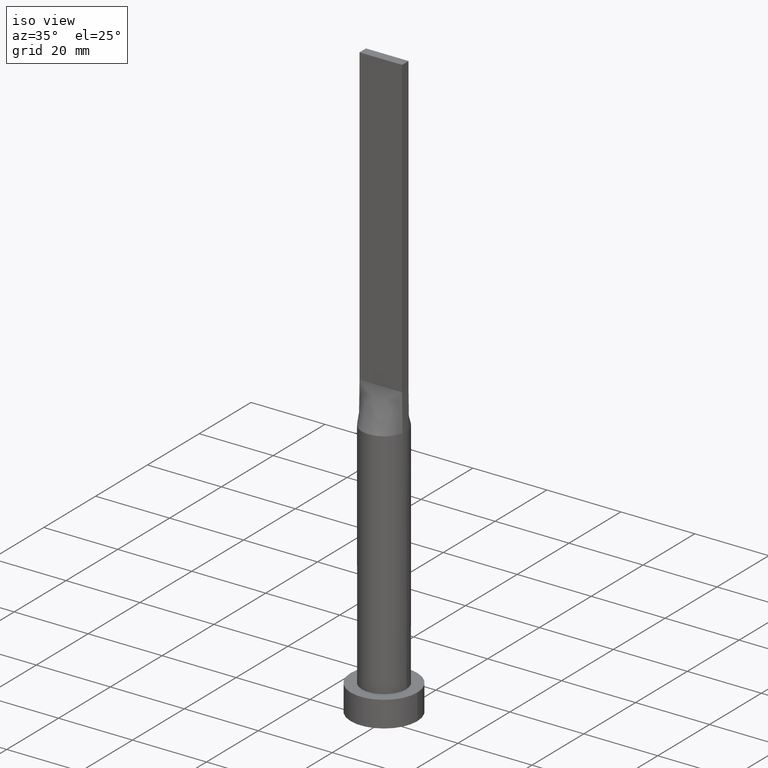
[diagram: clean part render]
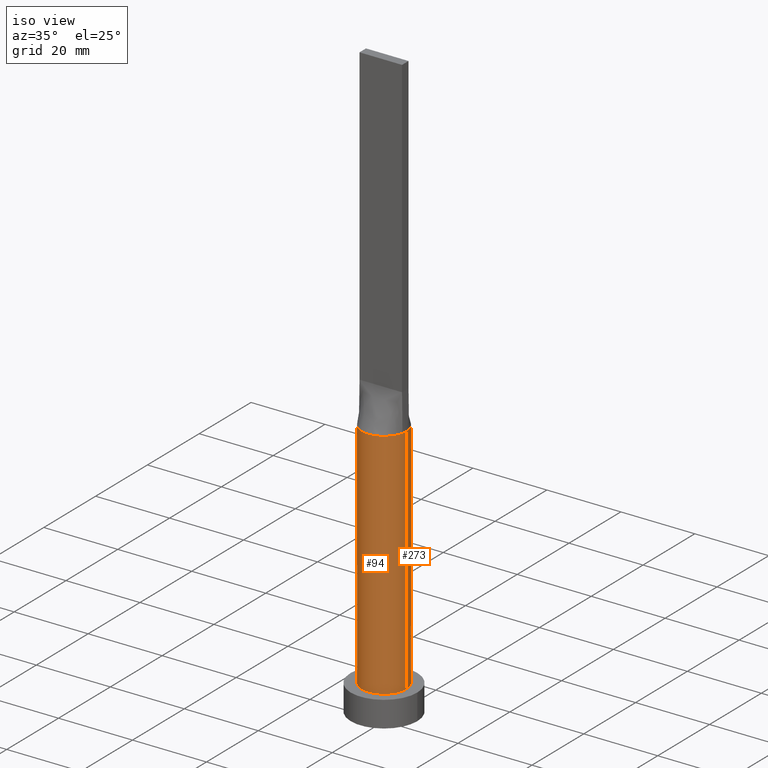
[diagram: same view with one multi-face feature highlighted, each face labeled with its STEP entity id]
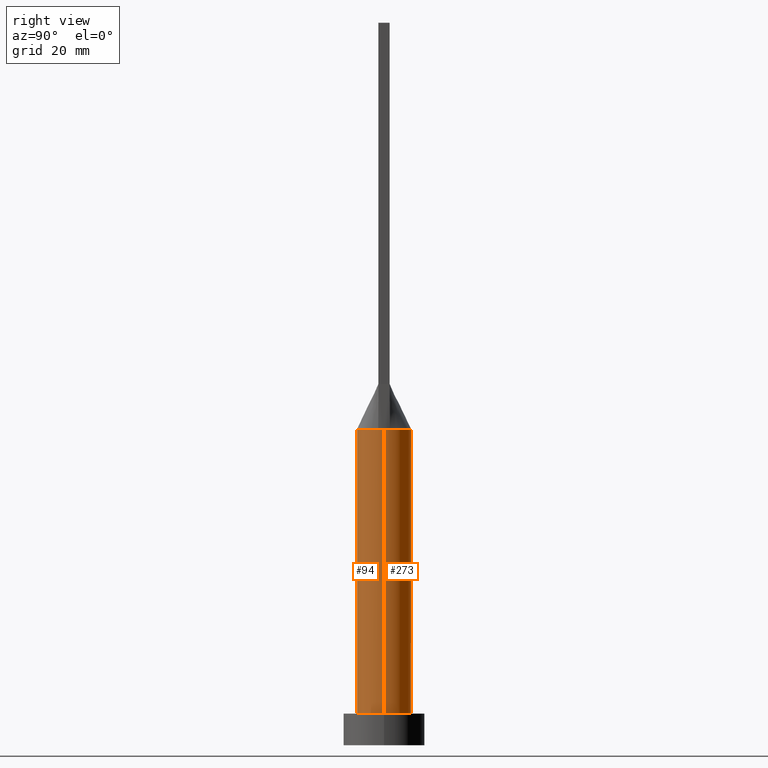
[diagram: same view with one multi-face feature highlighted, each face labeled with its STEP entity id]
A machine part, iso view. The highlighted faces form ONE feature: a constant-radius fillet chain: 2 tangent blend faces with common blend radius 6 mm. The faces share edges in the B-rep.
A second angle (right view) of the same feature is appended — it is thin or edge-on in the first view.
Their STEP definitions:
[1] entity #273 (Cylinder):
#4 = FACE_OUTER_BOUND ( 'NONE', #390, .T. ) ;
#25 = VERTEX_POINT ( 'NONE', #97 ) ;
#28 = DIRECTION ( 'NONE',  ( 1.000000000000000000, 0.000000000000000000, 0.000000000000000000 ) ) ;
#37 = CARTESIAN_POINT ( 'NONE',  ( 3.660567483996337579, 4.804269179125218336, 70.00000000000000000 ) ) ;
#38 = CIRCLE ( 'NONE', #86, 6.000000000000000888 ) ;
#83 = EDGE_CURVE ( 'NONE', #558, #447, #184, .T. ) ;
#84 = B_SPLINE_CURVE_WITH_KNOTS ( 'NONE', 3,
 ( #454, #469, #307, #395, #185, #37, #136, #511, #547, #85, #589, #176, #598, #224, #549, #351, #319, #266, #347, #409, #401, #130 ),
 .UNSPECIFIED., .F., .F.,
 ( 4, 2, 2, 2, 2, 2, 2, 2, 2, 2, 4 ),
 ( 0.000000000000000000, 0.1249999999999999722, 0.2499999999999999445, 0.3749999999999999445, 0.4374999999999999445, 0.4999999999999998890, 0.5624999999999998890, 0.6249999999999998890, 0.7499999999999997780, 0.8749999999999998890, 1.000000000000000000 ),
 .UNSPECIFIED. ) ;
#85 = CARTESIAN_POINT ( 'NONE',  ( 0.8058840496048939039, 5.959001506938069070, 70.00000000000001421 ) ) ;
#86 = AXIS2_PLACEMENT_3D ( 'NONE', #591, #343, #28 ) ;
#93 = ORIENTED_EDGE ( 'NONE', *, *, #231, .F. ) ;
#97 = CARTESIAN_POINT ( 'NONE',  ( 6.000000000000000888, 6.923844231069229210E-17, 70.00000000000000000 ) ) ;
#98 = CARTESIAN_POINT ( 'NONE',  ( 5.863058183536806744, 1.274577865986262326, 70.00000000000000000 ) ) ;
#130 = CARTESIAN_POINT ( 'NONE',  ( -5.863058287509749888, 1.274577880478287017, 70.00000000000000000 ) ) ;
#133 = CARTESIAN_POINT ( 'NONE',  ( -6.000000000000000888, -3.688698462745542764E-16, 70.00000000000000000 ) ) ;
#134 = VERTEX_POINT ( 'NONE', #98 ) ;
#136 = CARTESIAN_POINT ( 'NONE',  ( 3.037647739454305995, 5.231880992812856235, 70.00000000000001421 ) ) ;
#153 = EDGE_CURVE ( 'NONE', #134, #227, #84, .T. ) ;
#176 = CARTESIAN_POINT ( 'NONE',  ( -0.4029827085191223790, 5.999999999999998224, 70.00000000000000000 ) ) ;
#180 = ORIENTED_EDGE ( 'NONE', *, *, #314, .F. ) ;
#181 = CARTESIAN_POINT ( 'NONE',  ( -6.000000000000000888, 0.000000000000000000, 7.000000000000000000 ) ) ;
#182 = DIRECTION ( 'NONE',  ( -0.000000000000000000, -0.000000000000000000, -1.000000000000000000 ) ) ;
#183 = ORIENTED_EDGE ( 'NONE', *, *, #83, .T. ) ;
#184 = CIRCLE ( 'NONE', #531, 6.000000000000000888 ) ;
#185 = CARTESIAN_POINT ( 'NONE',  ( 4.659826596530313836, 3.842755878357678068, 70.00000000000001421 ) ) ;
#192 = LINE ( 'NONE', #564, #496 ) ;
#201 = VERTEX_POINT ( 'NONE', #133 ) ;
#218 = CARTESIAN_POINT ( 'NONE',  ( 6.000000000000000888, 7.347880794884120722E-16, 7.000000000000000000 ) ) ;
#224 = CARTESIAN_POINT ( 'NONE',  ( -1.587717880441007035, 5.799853445840308375, 69.99999999999998579 ) ) ;
#227 = VERTEX_POINT ( 'NONE', #311 ) ;
#228 = CYLINDRICAL_SURFACE ( 'NONE', #416, 6.000000000000000888 ) ;
#231 = EDGE_CURVE ( 'NONE', #201, #447, #460, .T. ) ;
#245 = DIRECTION ( 'NONE',  ( 1.000000000000000000, 0.000000000000000000, 0.000000000000000000 ) ) ;
#266 = CARTESIAN_POINT ( 'NONE',  ( -4.659826596530312948, 3.842755878357679844, 69.99999999999998579 ) ) ;
#270 = CARTESIAN_POINT ( 'NONE',  ( -6.000000000000000888, 0.000000000000000000, 70.00000000000000000 ) ) ;
#273 = ADVANCED_FACE ( 'NONE', ( #4 ), #228, .T. ) ;
#283 = DIRECTION ( 'NONE',  ( 1.000000000000000000, 0.000000000000000000, 0.000000000000000000 ) ) ;
#307 = CARTESIAN_POINT ( 'NONE',  ( 5.586898165904734093, 2.266054396544147309, 70.00000000000000000 ) ) ;
#311 = CARTESIAN_POINT ( 'NONE',  ( -5.863058287509749888, 1.274577880478287017, 70.00000000000000000 ) ) ;
#314 = EDGE_CURVE ( 'NONE', #227, #201, #397, .T. ) ;
#319 = CARTESIAN_POINT ( 'NONE',  ( -3.660567483996338023, 4.804269179125219225, 70.00000000000001421 ) ) ;
#326 = DIRECTION ( 'NONE',  ( -1.000000000000000000, 0.000000000000000000, 0.000000000000000000 ) ) ;
#328 = CARTESIAN_POINT ( 'NONE',  ( 0.000000000000000000, 0.000000000000000000, 70.00000000000000000 ) ) ;
#343 = DIRECTION ( 'NONE',  ( 0.000000000000000000, 0.000000000000000000, 1.000000000000000000 ) ) ;
#347 = CARTESIAN_POINT ( 'NONE',  ( -5.038190104264874236, 3.311355329404293446, 70.00000000000001421 ) ) ;
#350 = EDGE_CURVE ( 'NONE', #25, #558, #192, .T. ) ;
#351 = CARTESIAN_POINT ( 'NONE',  ( -3.037647739454304663, 5.231880992812857123, 70.00000000000002842 ) ) ;
#368 = DIRECTION ( 'NONE',  ( -0.000000000000000000, -0.000000000000000000, -1.000000000000000000 ) ) ;
#379 = CARTESIAN_POINT ( 'NONE',  ( 0.000000000000000000, 0.000000000000000000, 70.00000000000000000 ) ) ;
#390 = EDGE_LOOP ( 'NONE', ( #555, #536, #183, #93, #180, #521 ) ) ;
#395 = CARTESIAN_POINT ( 'NONE',  ( 5.038190104264874236, 3.311355329404293002, 70.00000000000004263 ) ) ;
#397 = CIRCLE ( 'NONE', #407, 6.000000000000000888 ) ;
#401 = CARTESIAN_POINT ( 'NONE',  ( -5.759267569818392829, 1.752014689090956256, 70.00000000000000000 ) ) ;
#407 = AXIS2_PLACEMENT_3D ( 'NONE', #379, #489, #283 ) ;
#409 = CARTESIAN_POINT ( 'NONE',  ( -5.586898165904732316, 2.266054396544148197, 70.00000000000001421 ) ) ;
#416 = AXIS2_PLACEMENT_3D ( 'NONE', #328, #368, #326 ) ;
#447 = VERTEX_POINT ( 'NONE', #181 ) ;
#454 = CARTESIAN_POINT ( 'NONE',  ( 5.863058183536806744, 1.274577865986262326, 70.00000000000000000 ) ) ;
#460 = LINE ( 'NONE', #270, #510 ) ;
#469 = CARTESIAN_POINT ( 'NONE',  ( 5.759267569818392829, 1.752014689090955590, 70.00000000000001421 ) ) ;
#487 = CARTESIAN_POINT ( 'NONE',  ( 0.000000000000000000, 0.000000000000000000, 7.000000000000000000 ) ) ;
#489 = DIRECTION ( 'NONE',  ( 0.000000000000000000, 0.000000000000000000, 1.000000000000000000 ) ) ;
#496 = VECTOR ( 'NONE', #573, 1000.000000000000000 ) ;
#510 = VECTOR ( 'NONE', #182, 1000.000000000000000 ) ;
#511 = CARTESIAN_POINT ( 'NONE',  ( 1.966519853258819062, 5.681792876789066860, 70.00000000000000000 ) ) ;
#521 = ORIENTED_EDGE ( 'NONE', *, *, #153, .F. ) ;
#531 = AXIS2_PLACEMENT_3D ( 'NONE', #487, #541, #245 ) ;
#536 = ORIENTED_EDGE ( 'NONE', *, *, #350, .T. ) ;
#541 = DIRECTION ( 'NONE',  ( 0.000000000000000000, 0.000000000000000000, 1.000000000000000000 ) ) ;
#547 = CARTESIAN_POINT ( 'NONE',  ( 1.587717880441007479, 5.799853445840305710, 69.99999999999998579 ) ) ;
#549 = CARTESIAN_POINT ( 'NONE',  ( -1.966519853258818173, 5.681792876789067748, 70.00000000000002842 ) ) ;
#555 = ORIENTED_EDGE ( 'NONE', *, *, #574, .F. ) ;
#558 = VERTEX_POINT ( 'NONE', #218 ) ;
#564 = CARTESIAN_POINT ( 'NONE',  ( 6.000000000000000888, 7.347880794884120722E-16, 70.00000000000000000 ) ) ;
#573 = DIRECTION ( 'NONE',  ( -0.000000000000000000, -0.000000000000000000, -1.000000000000000000 ) ) ;
#574 = EDGE_CURVE ( 'NONE', #25, #134, #38, .T. ) ;
#589 = CARTESIAN_POINT ( 'NONE',  ( 0.4029827085191226566, 5.999999999999999112, 70.00000000000000000 ) ) ;
#591 = CARTESIAN_POINT ( 'NONE',  ( 0.000000000000000000, 0.000000000000000000, 70.00000000000000000 ) ) ;
#598 = CARTESIAN_POINT ( 'NONE',  ( -0.8058840496048931268, 5.959001506938069070, 70.00000000000000000 ) ) ;
[2] entity #94 (Cylinder):
#18 = ORIENTED_EDGE ( 'NONE', *, *, #231, .T. ) ;
#25 = VERTEX_POINT ( 'NONE', #97 ) ;
#69 = FACE_OUTER_BOUND ( 'NONE', #473, .T. ) ;
#81 = AXIS2_PLACEMENT_3D ( 'NONE', #172, #126, #342 ) ;
#94 = ADVANCED_FACE ( 'NONE', ( #69 ), #330, .T. ) ;
#95 = AXIS2_PLACEMENT_3D ( 'NONE', #149, #485, #109 ) ;
#97 = CARTESIAN_POINT ( 'NONE',  ( 6.000000000000000888, 6.923844231069229210E-17, 70.00000000000000000 ) ) ;
#109 = DIRECTION ( 'NONE',  ( 1.000000000000000000, 0.000000000000000000, 0.000000000000000000 ) ) ;
#123 = ORIENTED_EDGE ( 'NONE', *, *, #288, .F. ) ;
#126 = DIRECTION ( 'NONE',  ( -0.000000000000000000, -0.000000000000000000, -1.000000000000000000 ) ) ;
#128 = DIRECTION ( 'NONE',  ( 1.000000000000000000, -9.769962616701377556E-15, 0.000000000000000000 ) ) ;
#132 = CARTESIAN_POINT ( 'NONE',  ( 5.863058287509796074, -1.274577880478293901, 70.00000000000000000 ) ) ;
#133 = CARTESIAN_POINT ( 'NONE',  ( -6.000000000000000888, -3.688698462745542764E-16, 70.00000000000000000 ) ) ;
#149 = CARTESIAN_POINT ( 'NONE',  ( 0.000000000000000000, 0.000000000000000000, 70.00000000000000000 ) ) ;
#167 = CIRCLE ( 'NONE', #324, 6.000000000000000888 ) ;
#172 = CARTESIAN_POINT ( 'NONE',  ( 0.000000000000000000, 0.000000000000000000, 70.00000000000000000 ) ) ;
#178 = DIRECTION ( 'NONE',  ( 1.000000000000000000, 0.000000000000000000, 0.000000000000000000 ) ) ;
#181 = CARTESIAN_POINT ( 'NONE',  ( -6.000000000000000888, 0.000000000000000000, 7.000000000000000000 ) ) ;
#182 = DIRECTION ( 'NONE',  ( -0.000000000000000000, -0.000000000000000000, -1.000000000000000000 ) ) ;
#192 = LINE ( 'NONE', #564, #496 ) ;
#196 = DIRECTION ( 'NONE',  ( 0.000000000000000000, 0.000000000000000000, 1.000000000000000000 ) ) ;
#201 = VERTEX_POINT ( 'NONE', #133 ) ;
#214 = CARTESIAN_POINT ( 'NONE',  ( 0.000000000000000000, 0.000000000000000000, 7.000000000000000000 ) ) ;
#218 = CARTESIAN_POINT ( 'NONE',  ( 6.000000000000000888, 7.347880794884120722E-16, 7.000000000000000000 ) ) ;
#230 = ORIENTED_EDGE ( 'NONE', *, *, #542, .F. ) ;
#231 = EDGE_CURVE ( 'NONE', #201, #447, #460, .T. ) ;
#254 = CARTESIAN_POINT ( 'NONE',  ( 0.000000000000000000, 0.000000000000000000, 70.00000000000000000 ) ) ;
#270 = CARTESIAN_POINT ( 'NONE',  ( -6.000000000000000888, 0.000000000000000000, 70.00000000000000000 ) ) ;
#288 = EDGE_CURVE ( 'NONE', #201, #393, #167, .T. ) ;
#324 = AXIS2_PLACEMENT_3D ( 'NONE', #371, #196, #578 ) ;
#330 = CYLINDRICAL_SURFACE ( 'NONE', #81, 6.000000000000000888 ) ;
#342 = DIRECTION ( 'NONE',  ( -1.000000000000000000, 0.000000000000000000, 0.000000000000000000 ) ) ;
#348 = ORIENTED_EDGE ( 'NONE', *, *, #361, .F. ) ;
#350 = EDGE_CURVE ( 'NONE', #25, #558, #192, .T. ) ;
#361 = EDGE_CURVE ( 'NONE', #393, #600, #465, .T. ) ;
#371 = CARTESIAN_POINT ( 'NONE',  ( 0.000000000000000000, 0.000000000000000000, 70.00000000000000000 ) ) ;
#387 = ORIENTED_EDGE ( 'NONE', *, *, #350, .F. ) ;
#393 = VERTEX_POINT ( 'NONE', #480 ) ;
#400 = AXIS2_PLACEMENT_3D ( 'NONE', #214, #499, #178 ) ;
#417 = CIRCLE ( 'NONE', #497, 6.000000000000000888 ) ;
#447 = VERTEX_POINT ( 'NONE', #181 ) ;
#460 = LINE ( 'NONE', #270, #510 ) ;
#465 = CIRCLE ( 'NONE', #95, 6.000000000000000888 ) ;
#473 = EDGE_LOOP ( 'NONE', ( #387, #230, #348, #123, #18, #539 ) ) ;
#480 = CARTESIAN_POINT ( 'NONE',  ( -5.863065408737084816, -1.274579424051652365, 70.00000000000000000 ) ) ;
#485 = DIRECTION ( 'NONE',  ( 0.000000000000000000, 0.000000000000000000, 1.000000000000000000 ) ) ;
#496 = VECTOR ( 'NONE', #573, 1000.000000000000000 ) ;
#497 = AXIS2_PLACEMENT_3D ( 'NONE', #254, #551, #128 ) ;
#499 = DIRECTION ( 'NONE',  ( 0.000000000000000000, 0.000000000000000000, 1.000000000000000000 ) ) ;
#510 = VECTOR ( 'NONE', #182, 1000.000000000000000 ) ;
#539 = ORIENTED_EDGE ( 'NONE', *, *, #584, .T. ) ;
#542 = EDGE_CURVE ( 'NONE', #600, #25, #417, .T. ) ;
#551 = DIRECTION ( 'NONE',  ( 0.000000000000000000, 0.000000000000000000, 1.000000000000000000 ) ) ;
#558 = VERTEX_POINT ( 'NONE', #218 ) ;
#560 = CIRCLE ( 'NONE', #400, 6.000000000000000888 ) ;
#564 = CARTESIAN_POINT ( 'NONE',  ( 6.000000000000000888, 7.347880794884120722E-16, 70.00000000000000000 ) ) ;
#573 = DIRECTION ( 'NONE',  ( -0.000000000000000000, -0.000000000000000000, -1.000000000000000000 ) ) ;
#578 = DIRECTION ( 'NONE',  ( 1.000000000000000000, 0.000000000000000000, 0.000000000000000000 ) ) ;
#584 = EDGE_CURVE ( 'NONE', #447, #558, #560, .T. ) ;
#600 = VERTEX_POINT ( 'NONE', #132 ) ;